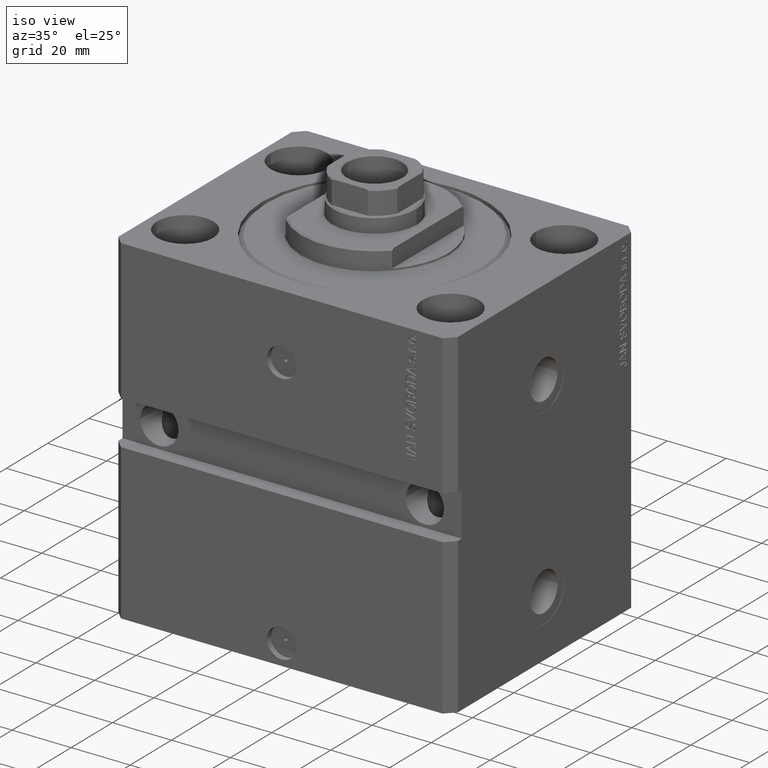
[diagram: clean part render]
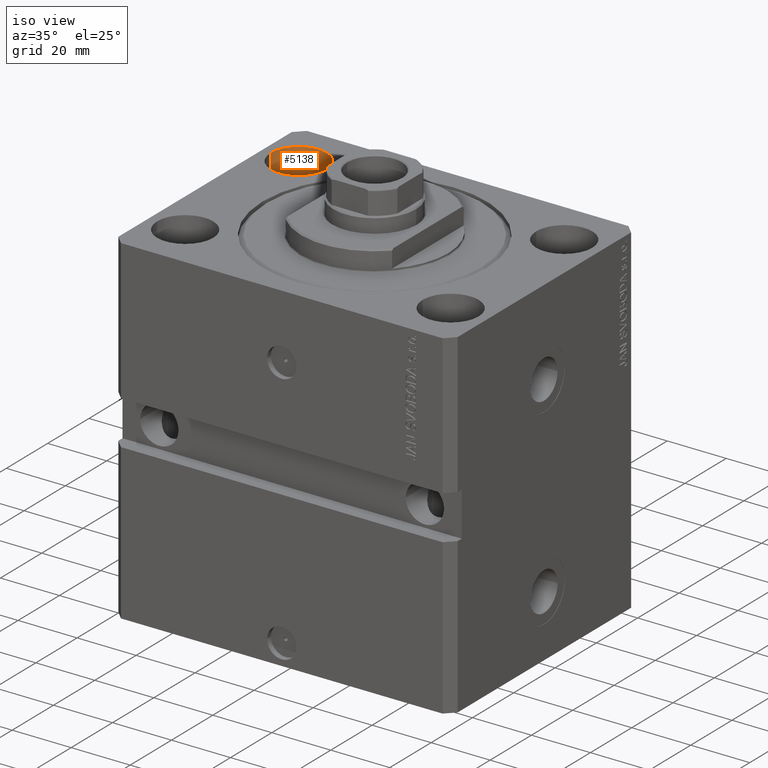
[diagram: same view with one face highlighted and labeled with its STEP entity id]
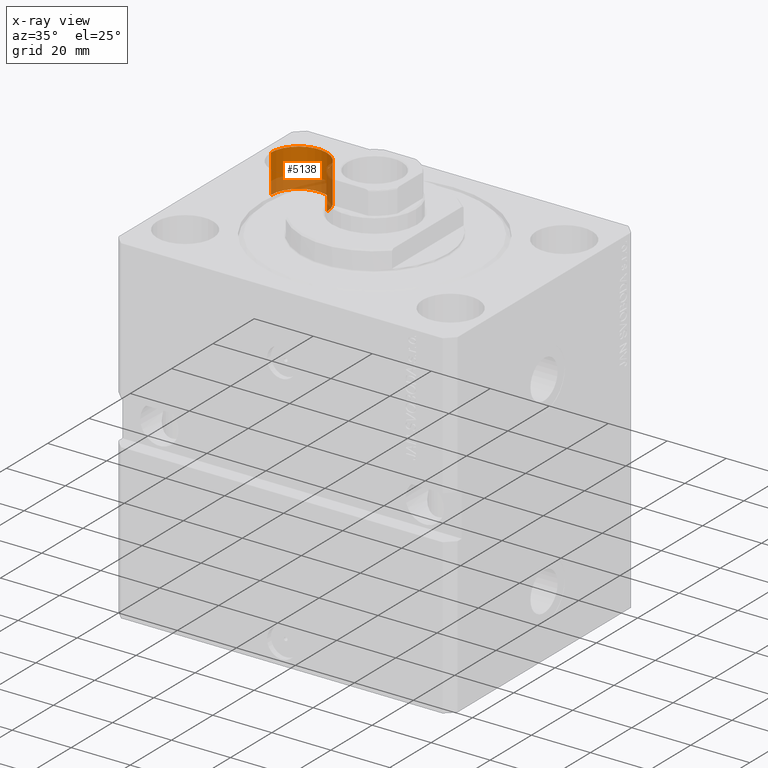
[diagram: x-ray of the same camera — body ghosted, the highlighted face saturated]
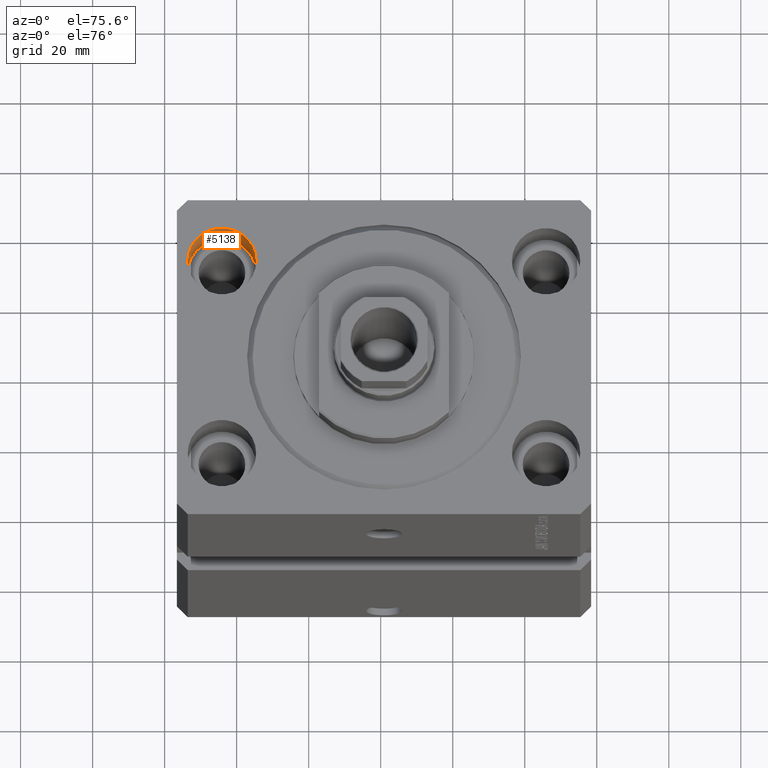
[diagram: same view with one face highlighted and labeled with its STEP entity id]
A machine part, iso view. The second image highlights one B-rep face of the part: STEP entity #5138.
The next image is the same camera in x-ray: the body ghosted, the highlighted face saturated — about 39% of this face is hidden behind the body in this view.
A second angle (auxiliary view) of the same face is appended — the face is thin or edge-on in the first view.
In plain terms, the highlighted cylindrical surface (edge-blend (fillet) strip) has radius 9.5 mm, axis along (0, 0, 1).
Its self-contained STEP definition (entity closure, byte-faithful):
#872 = EDGE_CURVE ( 'NONE', #37605, #19379, #20731, .T. ) ;
#2820 = DIRECTION ( 'NONE',  ( -0.000000000000000000, -0.000000000000000000, 1.000000000000000000 ) ) ;
#3091 = CARTESIAN_POINT ( 'NONE',  ( -35.50000000000000000, 27.50000000000000355, -13.00000000000000000 ) ) ;
#4105 = CARTESIAN_POINT ( 'NONE',  ( -54.50000000000000000, 27.50000000000000355, -13.00000000000000000 ) ) ;
#5138 = ADVANCED_FACE ( 'NONE', ( #36830 ), #40011, .F. ) ;
#5796 = DIRECTION ( 'NONE',  ( 1.000000000000000000, 0.000000000000000000, 0.000000000000000000 ) ) ;
#6048 = DIRECTION ( 'NONE',  ( -0.000000000000000000, -0.000000000000000000, 1.000000000000000000 ) ) ;
#12564 = EDGE_LOOP ( 'NONE', ( #31467, #18908, #26313, #46861 ) ) ;
#13644 = LINE ( 'NONE', #36303, #45434 ) ;
#14432 = CARTESIAN_POINT ( 'NONE',  ( -45.00000000000000000, 27.50000000000000355, -13.00000000000000000 ) ) ;
#16929 = VERTEX_POINT ( 'NONE', #3091 ) ;
#17126 = DIRECTION ( 'NONE',  ( 0.000000000000000000, 0.000000000000000000, 1.000000000000000000 ) ) ;
#17344 = CARTESIAN_POINT ( 'NONE',  ( -45.00000000000000000, 27.50000000000000355, 0.000000000000000000 ) ) ;
#18908 = ORIENTED_EDGE ( 'NONE', *, *, #36488, .F. ) ;
#19379 = VERTEX_POINT ( 'NONE', #45356 ) ;
#20731 = CIRCLE ( 'NONE', #24656, 9.500000000000001776 ) ;
#22227 = DIRECTION ( 'NONE',  ( -0.000000000000000000, -0.000000000000000000, 1.000000000000000000 ) ) ;
#23726 = LINE ( 'NONE', #38726, #33715 ) ;
#24656 = AXIS2_PLACEMENT_3D ( 'NONE', #17344, #32346, #47360 ) ;
#26313 = ORIENTED_EDGE ( 'NONE', *, *, #45389, .T. ) ;
#27935 = AXIS2_PLACEMENT_3D ( 'NONE', #14432, #6048, #5796 ) ;
#31412 = DIRECTION ( 'NONE',  ( 1.000000000000000000, 0.000000000000000000, 0.000000000000000000 ) ) ;
#31467 = ORIENTED_EDGE ( 'NONE', *, *, #46427, .F. ) ;
#32346 = DIRECTION ( 'NONE',  ( 0.000000000000000000, 0.000000000000000000, 1.000000000000000000 ) ) ;
#33715 = VECTOR ( 'NONE', #22227, 1000.000000000000000 ) ;
#35355 = CARTESIAN_POINT ( 'NONE',  ( -45.00000000000000000, 27.50000000000000355, -13.00000000000000000 ) ) ;
#36303 = CARTESIAN_POINT ( 'NONE',  ( -35.50000000000000000, 27.50000000000000355, -13.00000000000000000 ) ) ;
#36488 = EDGE_CURVE ( 'NONE', #16929, #48657, #46836, .T. ) ;
#36830 = FACE_OUTER_BOUND ( 'NONE', #12564, .T. ) ;
#37605 = VERTEX_POINT ( 'NONE', #45649 ) ;
#38726 = CARTESIAN_POINT ( 'NONE',  ( -54.50000000000000000, 27.50000000000000355, -13.00000000000000000 ) ) ;
#39766 = AXIS2_PLACEMENT_3D ( 'NONE', #35355, #17126, #31412 ) ;
#40011 = CYLINDRICAL_SURFACE ( 'NONE', #27935, 9.500000000000001776 ) ;
#45356 = CARTESIAN_POINT ( 'NONE',  ( -54.50000000000000000, 27.50000000000000355, 0.000000000000000000 ) ) ;
#45389 = EDGE_CURVE ( 'NONE', #16929, #37605, #13644, .T. ) ;
#45434 = VECTOR ( 'NONE', #2820, 1000.000000000000000 ) ;
#45649 = CARTESIAN_POINT ( 'NONE',  ( -35.50000000000000000, 27.50000000000000355, 0.000000000000000000 ) ) ;
#46427 = EDGE_CURVE ( 'NONE', #48657, #19379, #23726, .T. ) ;
#46836 = CIRCLE ( 'NONE', #39766, 9.500000000000001776 ) ;
#46861 = ORIENTED_EDGE ( 'NONE', *, *, #872, .T. ) ;
#47360 = DIRECTION ( 'NONE',  ( 1.000000000000000000, 0.000000000000000000, 0.000000000000000000 ) ) ;
#48657 = VERTEX_POINT ( 'NONE', #4105 ) ;